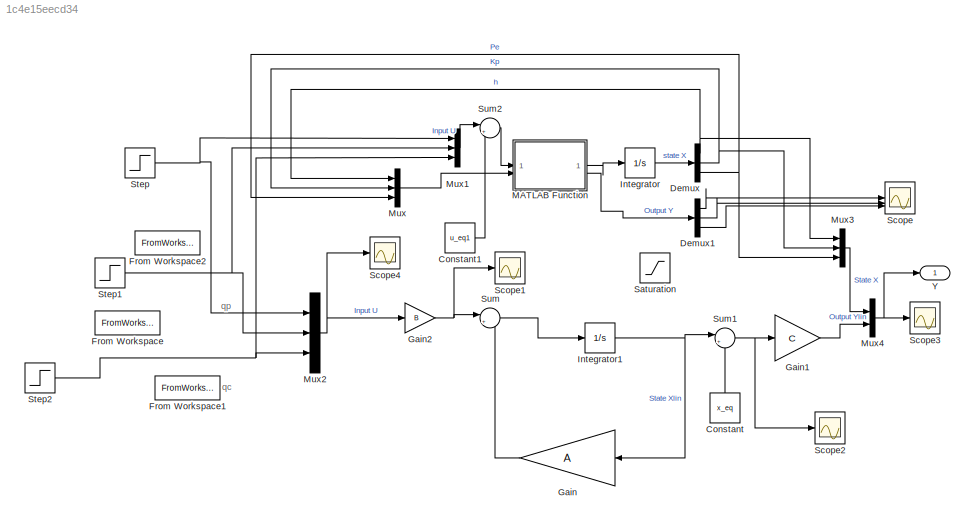
MODEL slx_1c4e15eecd34
KIND model
CONFIG AbsTol = auto
CONFIG EnableMultiTasking = off
CONFIG FixedStep = auto
CONFIG MaxStep = auto
CONFIG MinStep = auto
CONFIG RelTol = 1e-3
CONFIG SampleTimeConstraint = Unconstrained
CONFIG SolverName = ode113
CONFIG StartTime = 0.0
CONFIG StopTime = 10
BLOCK [Constant] Constant
  NameLocation = right
  Value = x_eq
BLOCK [Constant] Constant1
  Value = u_eq1
BLOCK [Demux] Demux
  Outputs = 3
BLOCK [Demux] Demux1
  Outputs = 3
BLOCK [FromWorkspace] From Workspace
  VariableName = u2
BLOCK [FromWorkspace] From Workspace1
  VariableName = u3
BLOCK [FromWorkspace] From Workspace2
  VariableName = u1
BLOCK [Gain] Gain
  Gain = A
  Multiplication = Matrix(K*u)
  NameLocation = top
BLOCK [Gain] Gain1
  Gain = C
  Multiplication = Matrix(K*u)
BLOCK [Gain] Gain2
  Gain = B
  Multiplication = Matrix(K*u) (u vector)
BLOCK [Integrator] Integrator
  InitialCondition = x_eq'
BLOCK [Integrator] Integrator1
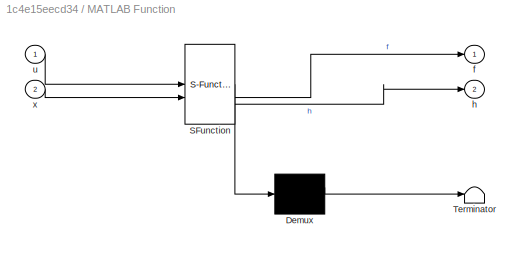
BLOCK [SubSystem] MATLAB Function
  ErrorFcn = Stateflow.Translate.translate
  LibrarySourceBlock = simulink/User-Defined\nFunctions/MATLAB Function
  PermitHierarchicalResolution = ExplicitOnly
  SFBlockType = MATLAB Function
  TreatAsAtomicUnit = on
BLOCK [Demux] MATLAB Function/ Demux 
  Outputs = 1
BLOCK [S-Function] MATLAB Function/ SFunction 
  EnableBusSupport = on
  FunctionName = sf_sfun
  PortCounts = [2 3]
  SFcnIsStateOwnerBlock = off
  SFunctionDeploymentMode = off
  Tag = Stateflow S-Function 2
BLOCK [Terminator] MATLAB Function/ Terminator 
BLOCK [Outport] MATLAB Function/f
BLOCK [Outport] MATLAB Function/h
  Port = 2
BLOCK [Inport] MATLAB Function/u
BLOCK [Inport] MATLAB Function/x
  Port = 2
BLOCK [Mux] Mux
  DisplayOption = bar
  Inputs = 3
BLOCK [Mux] Mux1
  DisplayOption = bar
  Inputs = 3
BLOCK [Mux] Mux2
  DisplayOption = bar
  Inputs = 3
BLOCK [Mux] Mux3
  DisplayOption = bar
  Inputs = 3
BLOCK [Mux] Mux4
  DisplayOption = bar
  Inputs = 2
BLOCK [Saturate] Saturation
BLOCK [Scope] Scope
  Floating = off
  NumInputPorts = 3
  ScopeSpecificationString = Simulink.scopes.TimeScopeBlockCfg('CurrentConfiguration', extmgr.ConfigurationSet(extmgr.Configuration('Core','General UI',true),extmgr.Configuration('Core','Source UI',true),extmgr.Configuration('Sources','WiredSimulink',true),extmgr.Configuration('Visuals','Time Domain',true,'SerializedDisplays',{struct('MinYLimReal','-20.63587','MaxYLimReal','94.40119','YLabelReal','','MinYLimMag','0.00000','Ma...<+1420ch>
BLOCK [Scope] Scope1
  Floating = off
  NumInputPorts = 1
  ScopeSpecificationString = Simulink.scopes.TimeScopeBlockCfg('CurrentConfiguration', extmgr.ConfigurationSet(extmgr.Configuration('Core','General UI',true),extmgr.Configuration('Core','Source UI',true),extmgr.Configuration('Sources','WiredSimulink',true,'DataLoggingVariableName','ScopeData1'),extmgr.Configuration('Visuals','Time Domain',true,'SerializedDisplays',{struct('MinYLimReal','-0.84838','MaxYLimReal','0.13545','YLab...<+1426ch>
BLOCK [Scope] Scope2
  Floating = off
  NumInputPorts = 1
  ScopeSpecificationString = Simulink.scopes.TimeScopeBlockCfg('CurrentConfiguration', extmgr.ConfigurationSet(extmgr.Configuration('Core','General UI',true),extmgr.Configuration('Core','Source UI',true),extmgr.Configuration('Sources','WiredSimulink',true,'DataLoggingVariableName','ScopeData2'),extmgr.Configuration('Visuals','Time Domain',true,'SerializedDisplays',{struct('MinYLimReal','-7.625','MaxYLimReal','78.625','YLabelR...<+1420ch>
BLOCK [Scope] Scope3
  Floating = off
  NumInputPorts = 1
  ScopeSpecificationString = Simulink.scopes.TimeScopeBlockCfg('CurrentConfiguration', extmgr.ConfigurationSet(extmgr.Configuration('Core','General UI',true),extmgr.Configuration('Core','Source UI',true),extmgr.Configuration('Sources','WiredSimulink',true,'DataLoggingVariableName','ScopeData3'),extmgr.Configuration('Visuals','Time Domain',true,'SerializedDisplays',{struct('MinYLimReal','-7.625','MaxYLimReal','78.625','YLabelR...<+1828ch>
BLOCK [Scope] Scope4
  Floating = off
  NumInputPorts = 1
  ScopeSpecificationString = Simulink.scopes.TimeScopeBlockCfg('CurrentConfiguration', extmgr.ConfigurationSet(extmgr.Configuration('Core','General UI',true),extmgr.Configuration('Core','Source UI',true),extmgr.Configuration('Sources','WiredSimulink',true,'DataLoggingVariableName','ScopeData1'),extmgr.Configuration('Visuals','Time Domain',true,'SerializedDisplays',{struct('MinYLimReal','-225.125','MaxYLimReal','26.125','YLabe...<+1431ch>
BLOCK [Step] Step
  After = uss(1)
  SampleTime = 0
  Time = 0
BLOCK [Step] Step1
  After = uss(2)
  SampleTime = 0
BLOCK [Step] Step2
  After = uss(3)
  SampleTime = 0
  Time = 0
BLOCK [Sum] Sum
  Inputs = |++
BLOCK [Sum] Sum1
  Inputs = |++
BLOCK [Sum] Sum2
  Inputs = |++
BLOCK [Outport] Y
  SignalName = Y
ANNOTATION (root): qc
ANNOTATION (root): qp
LINE Constant1:1 -> Sum2:2
LINE Constant:1 -> Sum1:2
LINE Demux1:1 -> Scope:1
LINE Demux1:2 -> Scope:2
LINE Demux1:3 -> Scope:3
NET Demux:1 -> Mux3:1, Mux:1
NET Demux:2 -> Mux3:2, Mux:2
NET Demux:3 -> Mux3:3, Mux:3
LINE Gain1:1 -> Mux4:2
NET Gain2:1 -> Scope1:1, Sum:1
LINE Gain:1 -> Sum:2
NET Integrator1:1 -> Gain:1, Sum1:1
LINE Integrator:1 -> Demux:1
LINE MATLAB Function:1 -> Integrator:1
LINE MATLAB Function:2 -> Demux1:1
LINE Mux1:1 -> Sum2:1
NET Mux2:1 -> Gain2:1, Scope4:1
LINE Mux3:1 -> Mux4:1
NET Mux4:1 -> Scope3:1, Y:1
LINE Mux:1 -> MATLAB Function:2
NET Step1:1 -> Mux1:2, Mux2:2
NET Step2:1 -> Mux1:3, Mux2:3
NET Step:1 -> Mux1:1, Mux2:1
NET Sum1:1 -> Gain1:1, Scope2:1
LINE Sum2:1 -> MATLAB Function:1
LINE Sum:1 -> Integrator1:1
note: NET lines group one-source signal fan-out (src -> all destinations, sorted); 1:1 wires keep LINE
CHART MATLAB Function states=1 transitions=1
  STATE_LABEL 'eML_blk_kernel()'
  STATE_LABEL 'SCRIPT:\nfunction [f,h] = fcn(u,x)\np=getparam_Gsp();\nu1=u(1);\nu2=u(2);\nu3=u(3);\nx1=x(1);\nx2=x(2);\nx3=x(3);\nf=[p.a1*x3+p.a2*x2-p.b1*u1-p.b2*(u2+p.K*x1)-p.k1;...\n-p.a3*x2*(u2+p.K*x1)+p.k2;...\n-p.a4*x3-p.a5*x2+p.b3*u1-((p.a6*x3+p.b4)/(p.b5*u3+p.k3))*u3+p.k4\n];\nh=[x1; x2; x3];\n\n'
CHART  states=0 transitions=0
